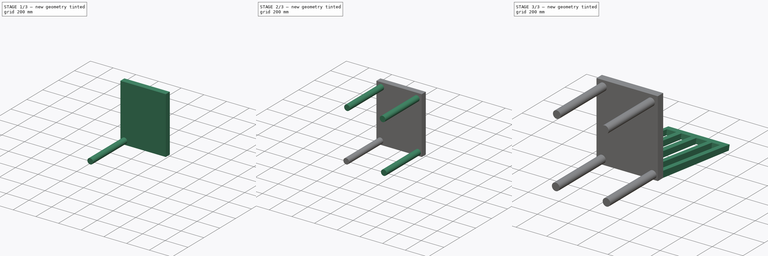
[diagram: build sequence overview — one tinted view per stage of 3, left to right]
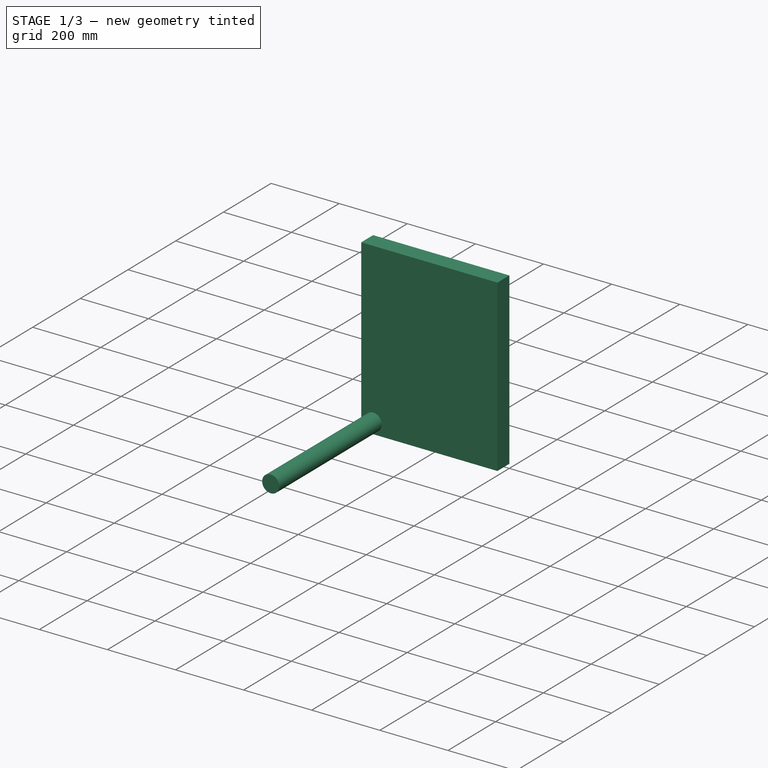
[diagram: stage 1 of 3 — iso view after this stage's code; geometry added in this stage tinted green]
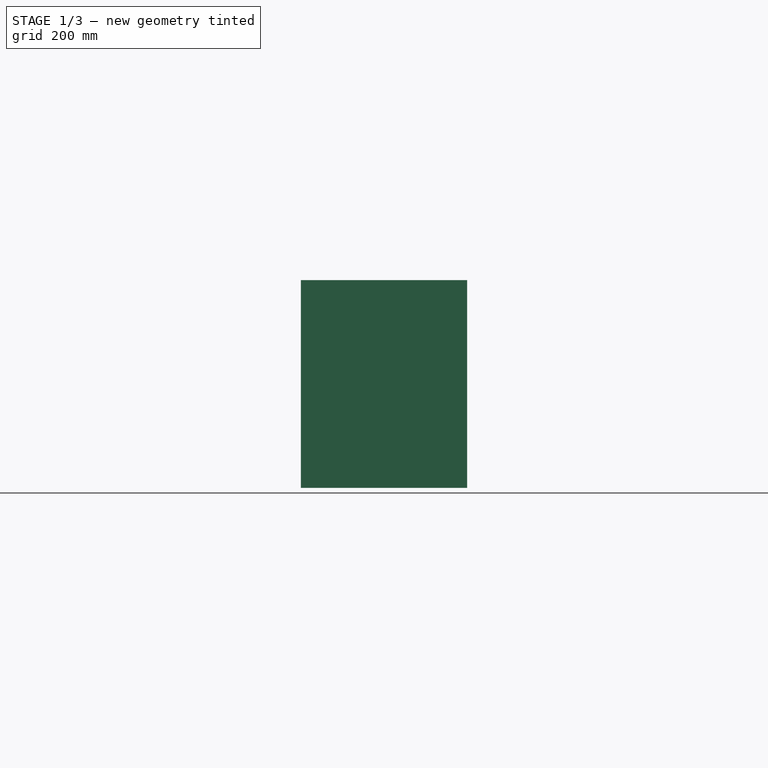
[diagram: stage 1 of 3 — front view after this stage's code; geometry added in this stage tinted green]
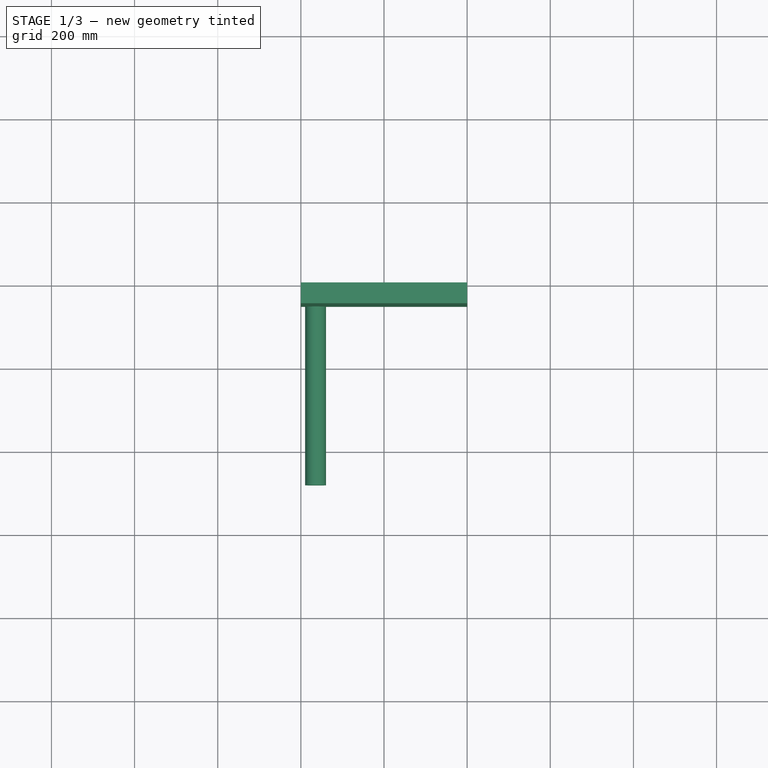
[diagram: stage 1 of 3 — top view after this stage's code; geometry added in this stage tinted green]
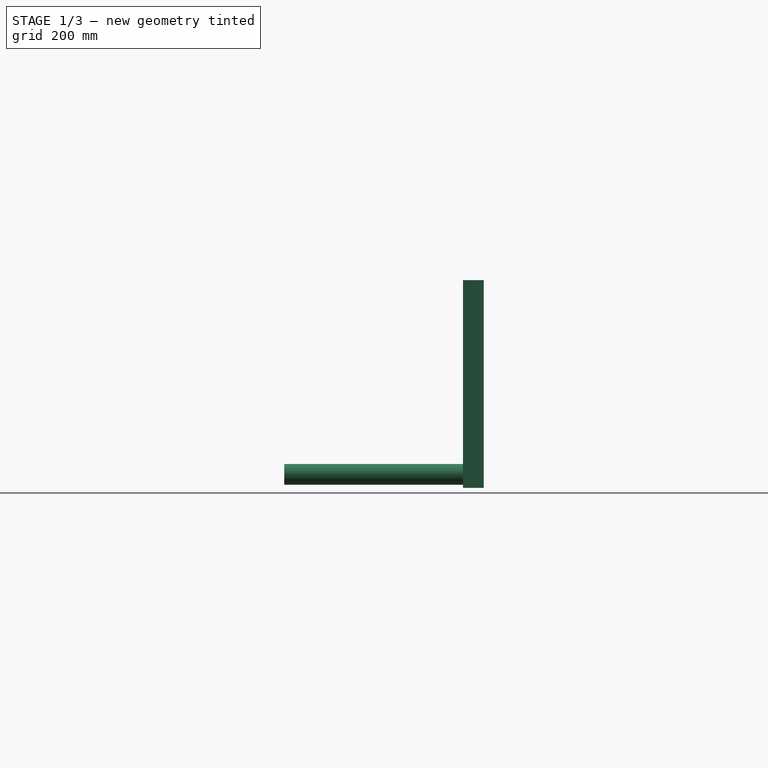
[diagram: stage 1 of 3 — right view after this stage's code; geometry added in this stage tinted green]
FCSTD DOCUMENT  (FreeCAD 1.0R39319 (Git))
Label: dining-chair
License: All rights reserved
LicenseURL: https://en.wikipedia.org/wiki/All_rights_reserved
objects: Sketcher::SketchObject×8, PartDesign::Pad×6, PartDesign::Pocket×1, PartDesign::Body×1
note: 38 computed .brp shape members not serialized (recipe doc carries the construction recipe); baked Part::Feature solids carry a one-line shape summary decoded from their .brp

FEATURE [Sketcher::SketchObject] Sketch
  ArcFitTolerance = 1e-06
  AttachmentSupport = -> [XZ_Plane]
  FullyConstrained = true
  MakeInternals = false
  MapMode = 5
  Placement = pos=(0,0,0) rot=(1,0,0;1.5708rad)
  sketch-geometry (4):
    g0: LineSegment StartX=0 StartY=0 StartZ=0 EndX=400 EndY=0 EndZ=0
    g1: LineSegment StartX=400 StartY=0 StartZ=0 EndX=400 EndY=500 EndZ=0
    g2: LineSegment StartX=400 StartY=500 StartZ=0 EndX=0 EndY=500 EndZ=0
    g3: LineSegment StartX=0 StartY=500 StartZ=0 EndX=0 EndY=0 EndZ=0
  constraints (11):
    c: Coincident(g0,g1)
    c: Coincident(g1,g2)
    c: Coincident(g2,g3)
    c: Coincident(g3,g0)
    c: Horizontal(g0)
    c: Horizontal(g2)
    c: Vertical(g1)
    c: Vertical(g3)
    c: Distance(g1,g3) = 400
    c: Distance(g0,g2) = 500
    c: Coincident(g0,g-1)
FEATURE [PartDesign::Pad] Pad
  Direction = (0,-1,2e-16)
  Length = 50
  Length2 = 10
  Placement = pos=(0,0,0) rot=(1,0,0;1.5708rad)
  Profile = -> Sketch
  ReferenceAxis = -> Sketch [N_Axis]
  Refine = true
  Suppressed = false
  Type = 0
FEATURE [Sketcher::SketchObject] Sketch001
  ArcFitTolerance = 1e-06
  AttachmentSupport = -> [XZ_Plane]
  FullyConstrained = false
  MakeInternals = false
  MapMode = 5
  Placement = pos=(0,0,0) rot=(1,0,0;1.5708rad)
  sketch-geometry (1):
    g0: Circle CenterX=3.85932 CenterY=3.04643 CenterZ=0 NormalX=0 NormalY=0 NormalZ=1 AngleXU=0 Radius=2.5
  constraints (1):
    c: Diameter(g0) = 5
FEATURE [Sketcher::SketchObject] Sketch002
  ArcFitTolerance = 1e-06
  AttachmentSupport = -> [XZ_Plane]
  FullyConstrained = false
  MakeInternals = false
  MapMode = 5
  Placement = pos=(0,0,0) rot=(1,0,0;1.5708rad)
  sketch-geometry (1):
    g0: Circle CenterX=35.3431 CenterY=32.5689 CenterZ=0 NormalX=0 NormalY=0 NormalZ=1 AngleXU=0 Radius=25
  constraints (1):
    c: Diameter(g0) = 50
FEATURE [PartDesign::Pad] Pad001
  BaseFeature = -> Pad
  Direction = (0,-1,2e-16)
  Length = 480
  Length2 = 10
  Placement = pos=(0,0,0) rot=(1,0,0;1.5708rad)
  Profile = -> Sketch002
  ReferenceAxis = -> Sketch002 [N_Axis]
  Refine = true
  Suppressed = false
  Type = 0
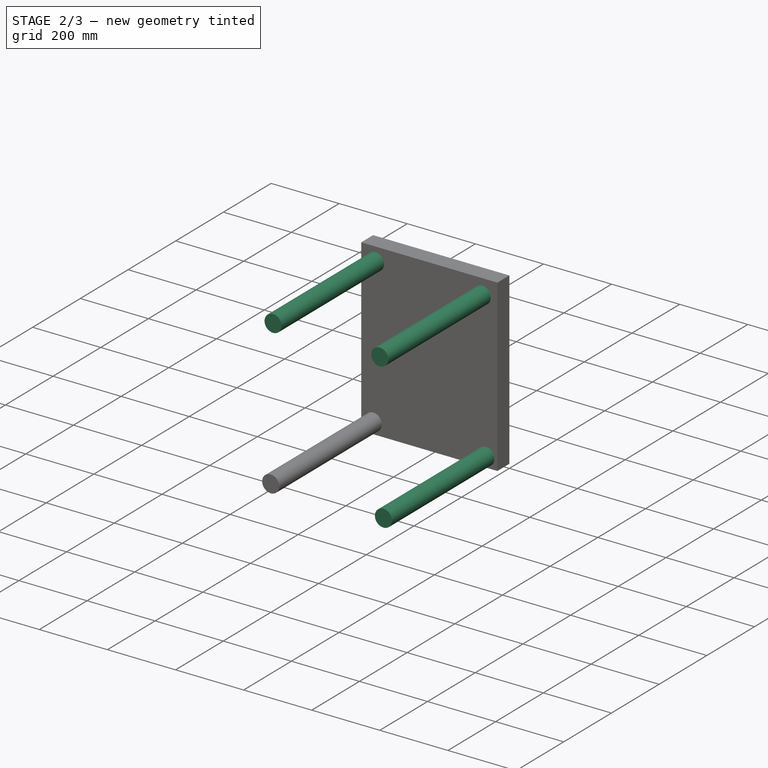
[diagram: stage 2 of 3 — iso view after this stage's code; geometry added in this stage tinted green]
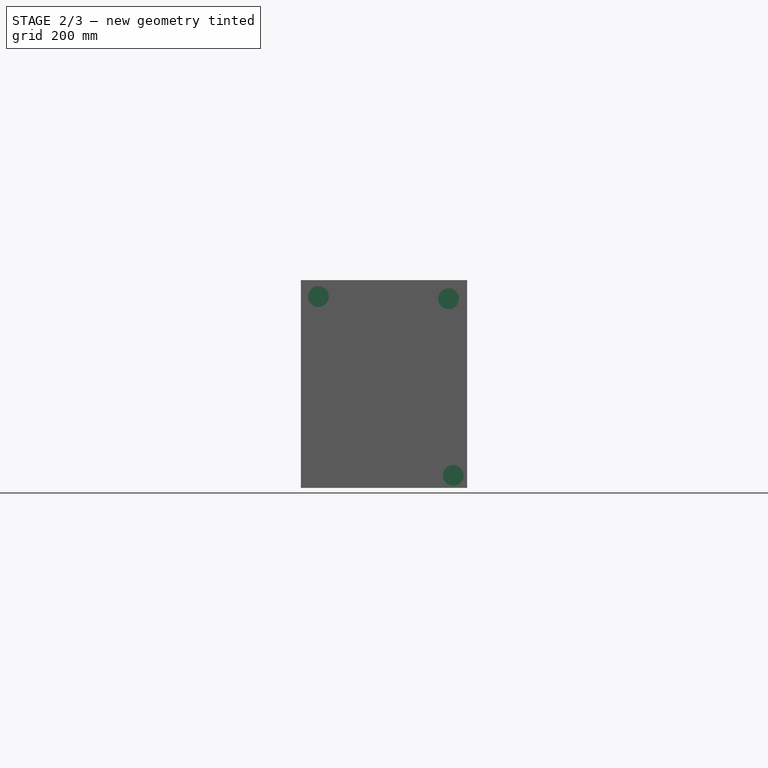
[diagram: stage 2 of 3 — front view after this stage's code; geometry added in this stage tinted green]
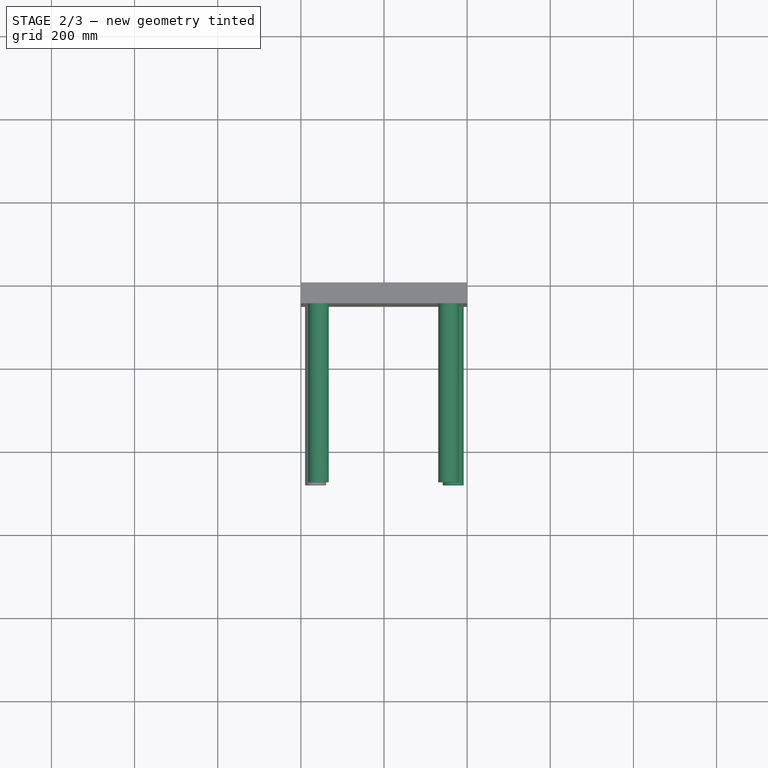
[diagram: stage 2 of 3 — top view after this stage's code; geometry added in this stage tinted green]
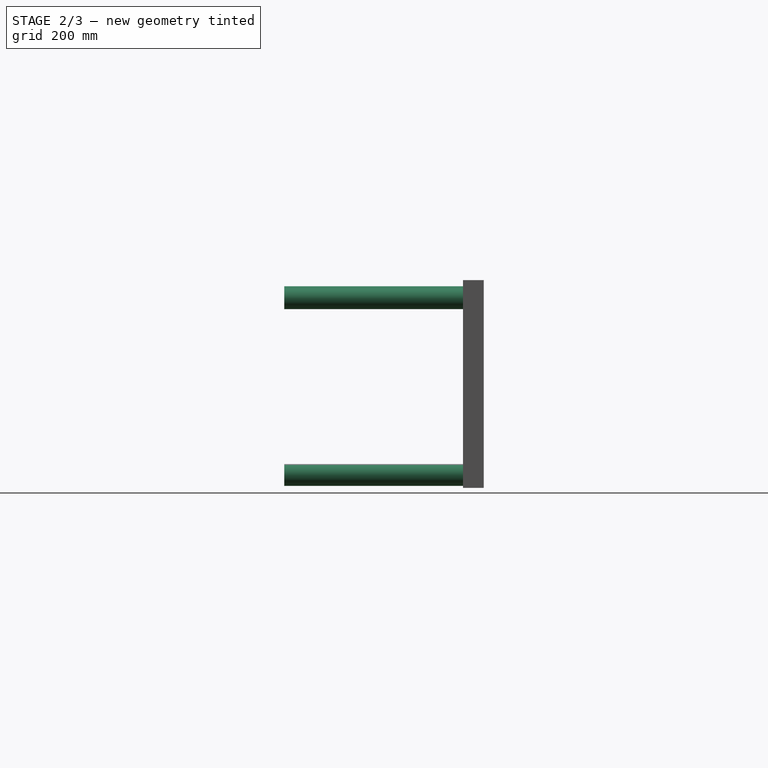
[diagram: stage 2 of 3 — right view after this stage's code; geometry added in this stage tinted green]
FEATURE [Sketcher::SketchObject] Sketch003
  ArcFitTolerance = 1e-06
  AttachmentSupport = -> [XZ_Plane]
  FullyConstrained = false
  MakeInternals = false
  MapMode = 5
  Placement = pos=(0,0,0) rot=(1,0,0;1.5708rad)
  sketch-geometry (1):
    g0: Circle CenterX=366.411 CenterY=30.0273 CenterZ=0 NormalX=0 NormalY=0 NormalZ=1 AngleXU=0 Radius=25
  constraints (1):
    c: Diameter(g0) = 50
FEATURE [PartDesign::Pad] Pad002
  BaseFeature = -> Pad001
  Direction = (0,-1,2e-16)
  Length = 480
  Length2 = 10
  Placement = pos=(0,0,0) rot=(1,0,0;1.5708rad)
  Profile = -> Sketch003
  ReferenceAxis = -> Sketch003 [N_Axis]
  Refine = true
  Suppressed = false
  Type = 0
FEATURE [Sketcher::SketchObject] Sketch004
  ArcFitTolerance = 1e-06
  AttachmentSupport = -> [XZ_Plane]
  FullyConstrained = false
  MakeInternals = false
  MapMode = 5
  Placement = pos=(0,0,0) rot=(1,0,0;1.5708rad)
  sketch-geometry (1):
    g0: Circle CenterX=42.2201 CenterY=460.294 CenterZ=0 NormalX=0 NormalY=0 NormalZ=1 AngleXU=0 Radius=25
  constraints (1):
    c: Diameter(g0) = 50
FEATURE [PartDesign::Pad] Pad003
  BaseFeature = -> Pad002
  Direction = (0,-1,2e-16)
  Length = 480
  Length2 = 10
  Placement = pos=(0,0,0) rot=(1,0,0;1.5708rad)
  Profile = -> Sketch004
  ReferenceAxis = -> Sketch004 [N_Axis]
  Refine = true
  Suppressed = false
  Type = 0
FEATURE [Sketcher::SketchObject] Sketch005
  ArcFitTolerance = 1e-06
  AttachmentSupport = -> [XZ_Plane]
  FullyConstrained = false
  MakeInternals = false
  MapMode = 5
  Placement = pos=(0,0,0) rot=(1,0,0;1.5708rad)
  sketch-geometry (1):
    g0: Circle CenterX=355.432 CenterY=455.074 CenterZ=0 NormalX=0 NormalY=0 NormalZ=1 AngleXU=0 Radius=25
  constraints (1):
    c: Diameter(g0) = 50
FEATURE [PartDesign::Pad] Pad004
  BaseFeature = -> Pad003
  Direction = (0,-1,2e-16)
  Length = 480
  Length2 = 10
  Placement = pos=(0,0,0) rot=(1,0,0;1.5708rad)
  Profile = -> Sketch005
  ReferenceAxis = -> Sketch005 [N_Axis]
  Refine = true
  Suppressed = false
  Type = 0
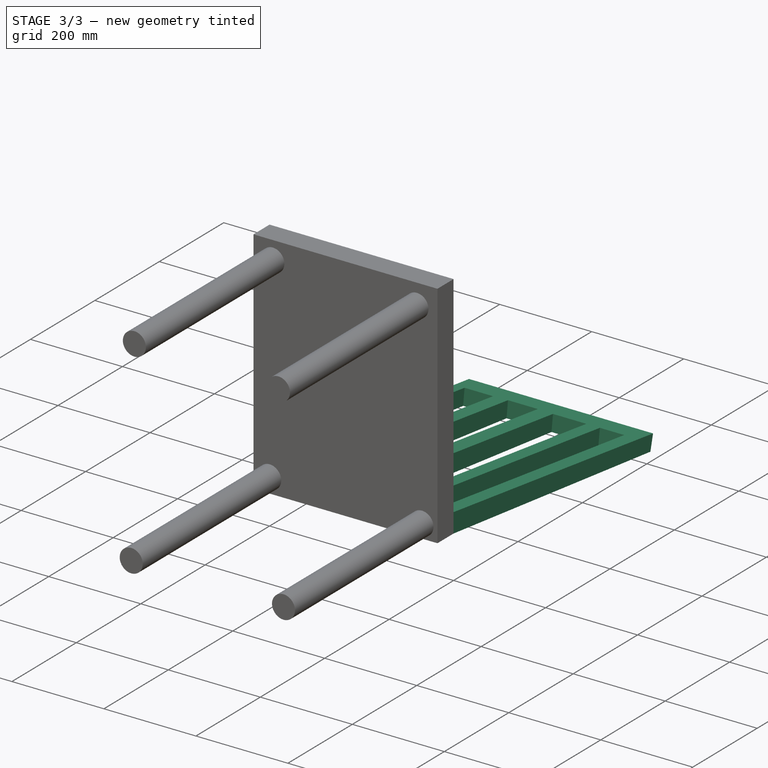
[diagram: stage 3 of 3 — iso view after this stage's code; geometry added in this stage tinted green]
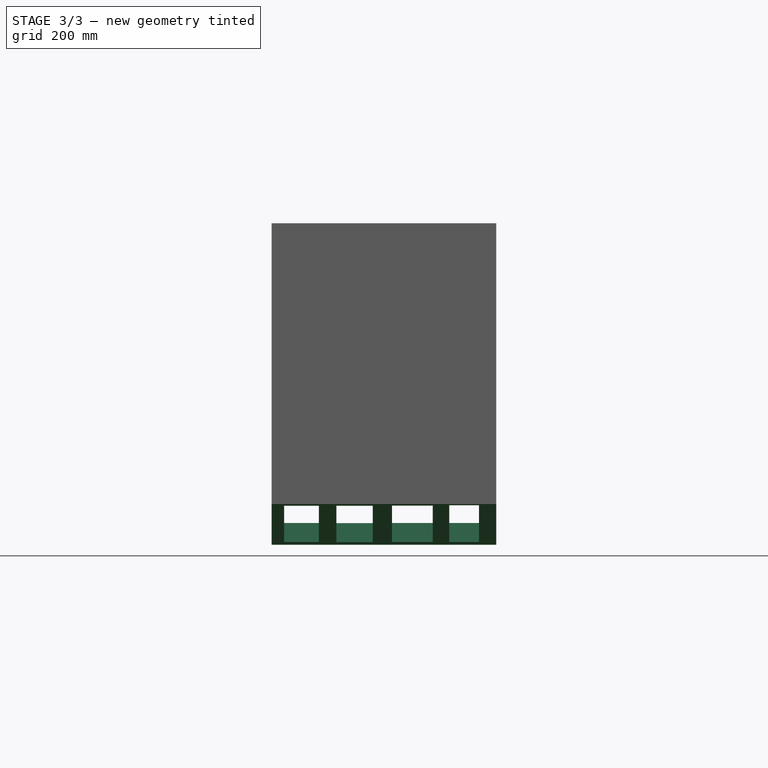
[diagram: stage 3 of 3 — front view after this stage's code; geometry added in this stage tinted green]
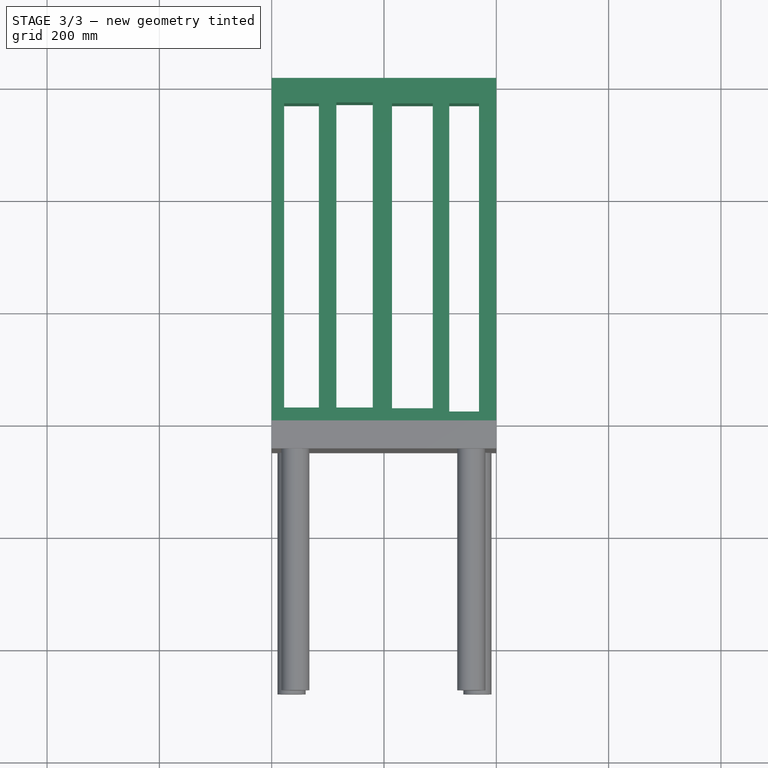
[diagram: stage 3 of 3 — top view after this stage's code; geometry added in this stage tinted green]
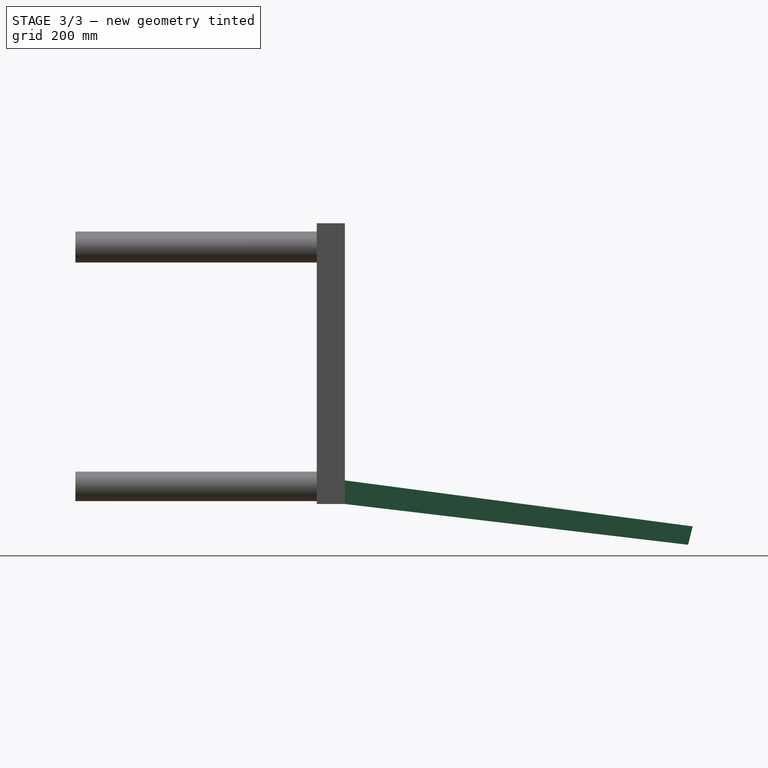
[diagram: stage 3 of 3 — right view after this stage's code; geometry added in this stage tinted green]
FEATURE [Sketcher::SketchObject] Sketch006
  ArcFitTolerance = 1e-06
  AttachmentSupport = -> [YZ_Plane]
  FullyConstrained = false
  MakeInternals = false
  MapMode = 5
  Placement = pos=(0,0,0) rot=(0.57735,0.57735,0.57735;2.0944rad)
  sketch-geometry (4):
    g0: LineSegment StartX=0 StartY=0 StartZ=0 EndX=611.163 EndY=-72.6394 EndZ=0
    g1: LineSegment StartX=0 StartY=0 StartZ=0 EndX=0 EndY=42.0171 EndZ=0
    g2: LineSegment StartX=0 StartY=42.0171 StartZ=0 EndX=619.353 EndY=-39.8804 EndZ=0
    g3: LineSegment StartX=611.163 StartY=-72.6394 StartZ=0 EndX=619.353 EndY=-39.8804 EndZ=0
  constraints (6):
    c: Coincident(g0,g-1)
    c: Coincident(g1,g0)
    c: PointOnObject(g1,g-2)
    c: Coincident(g2,g1)
    c: Coincident(g3,g0)
    c: Coincident(g3,g2)
FEATURE [PartDesign::Pad] Pad005
  BaseFeature = -> Pad004
  Direction = (1,0,0)
  Length = 400
  Length2 = 10
  Placement = pos=(0,0,0) rot=(1,0,0;1.5708rad)
  Profile = -> Sketch006
  ReferenceAxis = -> Sketch006 [N_Axis]
  Refine = true
  Suppressed = false
  Type = 0
FEATURE [Sketcher::SketchObject] Sketch007
  ArcFitTolerance = 1e-06
  AttachmentSupport = -> [Pad005]
  FullyConstrained = false
  MakeInternals = false
  MapMode = 5
  Placement = pos=(0,5.46047,41.295) rot=(0,0.065687,0.99784;3.14159rad)
  sketch-geometry (16):
    g0: LineSegment StartX=-369.221 StartY=-18.3823 StartZ=0 EndX=-369.221 EndY=-573.234 EndZ=0
    g1: LineSegment StartX=-369.221 StartY=-573.234 StartZ=0 EndX=-316.284 EndY=-573.234 EndZ=0
    g2: LineSegment StartX=-316.284 StartY=-573.234 StartZ=0 EndX=-316.284 EndY=-18.3823 EndZ=0
    g3: LineSegment StartX=-316.284 StartY=-18.3823 StartZ=0 EndX=-369.221 EndY=-18.3823 EndZ=0
    g4: LineSegment StartX=-286.875 StartY=-24.2642 StartZ=0 EndX=-286.875 EndY=-573.234 EndZ=0
    g5: LineSegment StartX=-286.875 StartY=-573.234 StartZ=0 EndX=-214.333 EndY=-573.234 EndZ=0
    g6: LineSegment StartX=-214.333 StartY=-573.234 StartZ=0 EndX=-214.333 EndY=-24.2642 EndZ=0
    g7: LineSegment StartX=-214.333 StartY=-24.2642 StartZ=0 EndX=-286.875 EndY=-24.2642 EndZ=0
    g8: LineSegment StartX=-180.003 StartY=-25.6546 StartZ=0 EndX=-180.003 EndY=-575.195 EndZ=0
    g9: LineSegment StartX=-180.003 StartY=-575.195 StartZ=0 EndX=-115.212 EndY=-575.195 EndZ=0
    g10: LineSegment StartX=-115.212 StartY=-575.195 StartZ=0 EndX=-115.212 EndY=-25.6546 EndZ=0
    g11: LineSegment StartX=-115.212 StartY=-25.6546 StartZ=0 EndX=-180.003 EndY=-25.6546 EndZ=0
    g12: LineSegment StartX=-84.0622 StartY=-25.6546 StartZ=0 EndX=-84.0622 EndY=-573.234 EndZ=0
    g13: LineSegment StartX=-84.0622 StartY=-573.234 StartZ=0 EndX=-22.1934 EndY=-573.234 EndZ=0
    g14: LineSegment StartX=-22.1934 StartY=-573.234 StartZ=0 EndX=-22.1934 EndY=-25.6546 EndZ=0
    g15: LineSegment StartX=-22.1934 StartY=-25.6546 StartZ=0 EndX=-84.0622 EndY=-25.6546 EndZ=0
  constraints (32):
    c: Coincident(g0,g1)
    c: Coincident(g1,g2)
    c: Coincident(g2,g3)
    c: Coincident(g3,g0)
    c: Vertical(g0)
    c: Vertical(g2)
    c: Horizontal(g1)
    c: Horizontal(g3)
    c: Coincident(g4,g5)
    c: Coincident(g5,g6)
    c: Coincident(g6,g7)
    c: Coincident(g7,g4)
    c: Vertical(g4)
    c: Vertical(g6)
    c: Horizontal(g5)
    c: Horizontal(g7)
    c: Coincident(g8,g9)
    c: Coincident(g9,g10)
    c: Coincident(g10,g11)
    c: Coincident(g11,g8)
    c: Vertical(g8)
    c: Vertical(g10)
    c: Horizontal(g9)
    c: Horizontal(g11)
    c: Coincident(g12,g13)
    c: Coincident(g13,g14)
    c: Coincident(g14,g15)
    c: Coincident(g15,g12)
    c: Vertical(g12)
    c: Vertical(g14)
    c: Horizontal(g13)
    c: Horizontal(g15)
FEATURE [PartDesign::Pocket] Pocket
  BaseFeature = -> Pad005
  Direction = (0,-0.13109,-0.991371)
  Length = 5
  Length2 = 5
  Placement = pos=(0,0,0) rot=(1,0,0;1.5708rad)
  Profile = -> Sketch007
  ReferenceAxis = -> Sketch007 [N_Axis]
  Refine = true
  Suppressed = false
  Type = 1
FEATURE [PartDesign::Body] Body
  AllowCompound = false
  Group = -> [Sketch,Pad,Sketch001,Sketch002,Pad001,Sketch003,Pad002,Sketch004,Pad003,Sketch005,Pad004,Sketch006,Pad005,Sketch007,Pocket]
  Origin = -> Origin
  Tip = -> Pocket
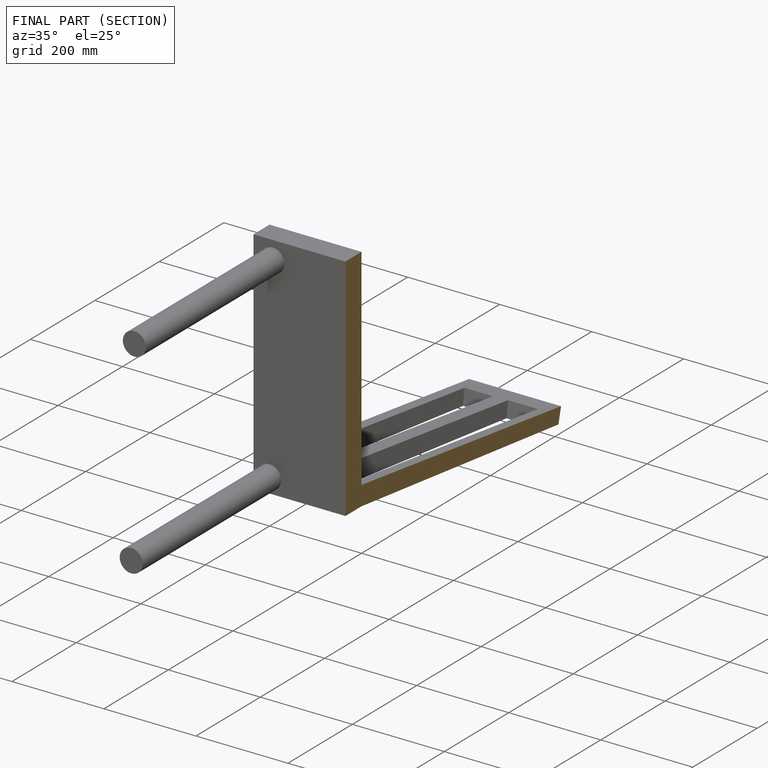
[diagram: finished part — half-section view (interior)]
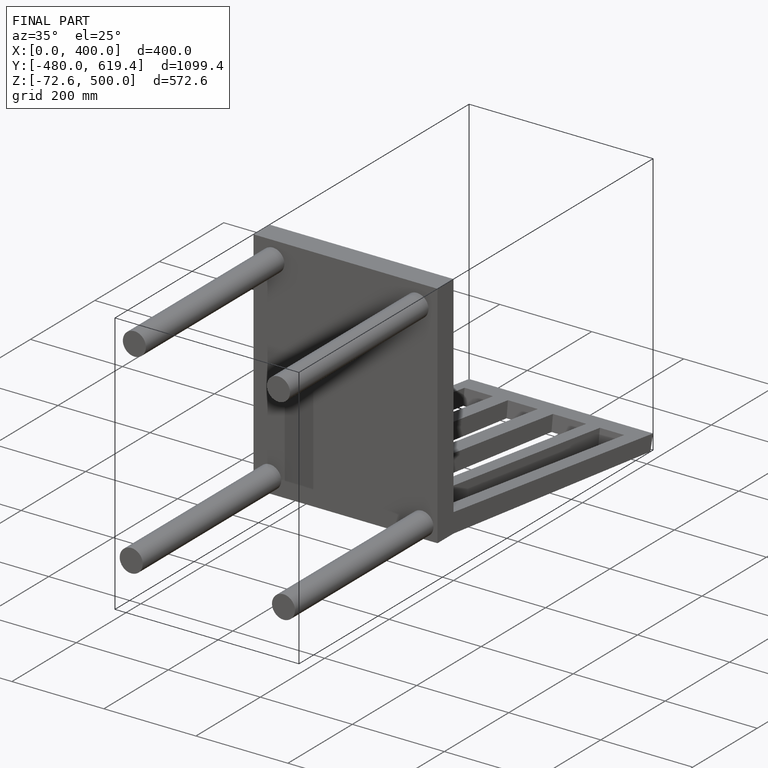
[diagram: finished part — iso view with bounding-box wireframe]
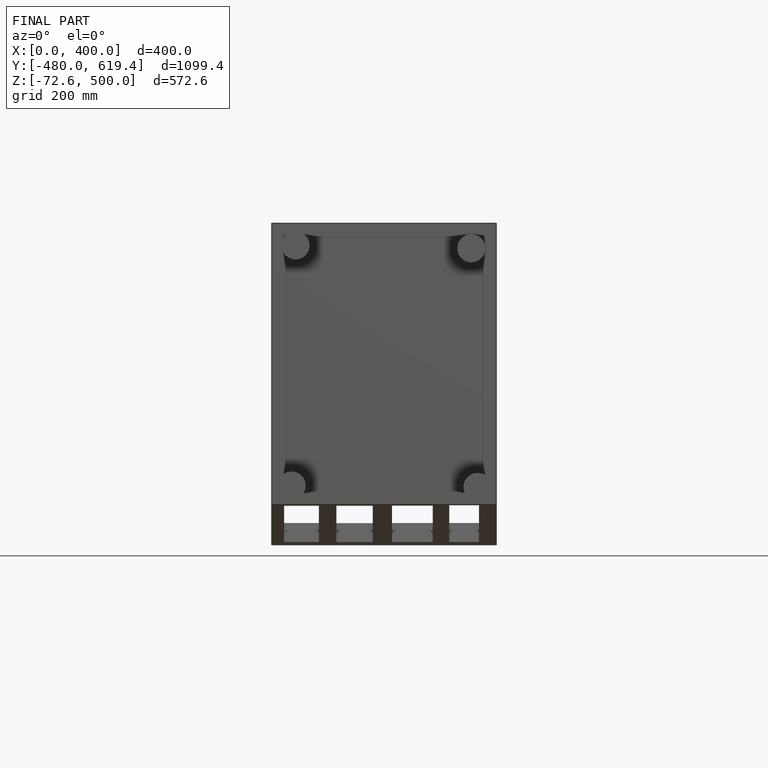
[diagram: finished part — front view with bounding-box wireframe]
